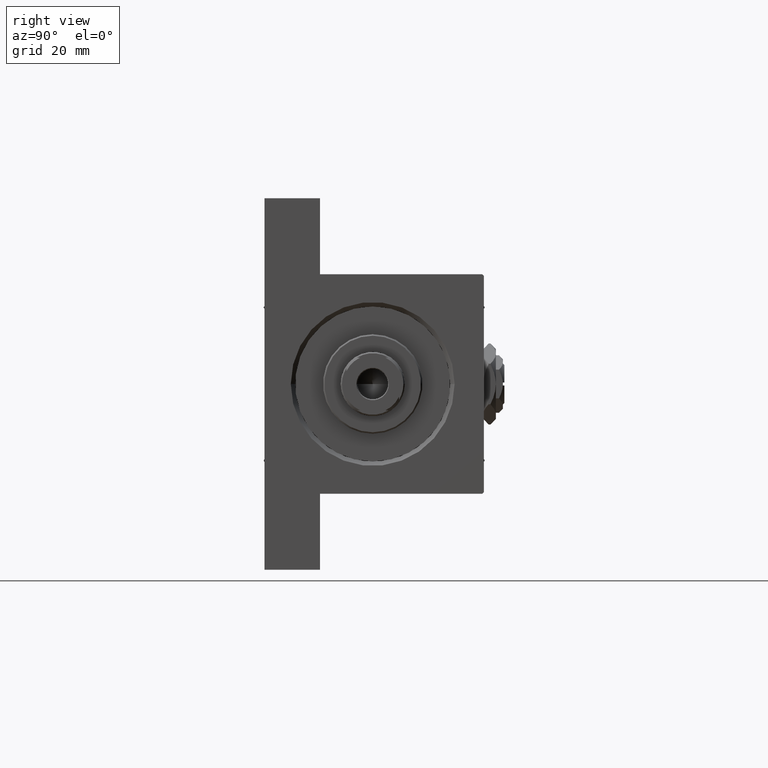
[diagram: clean part render]
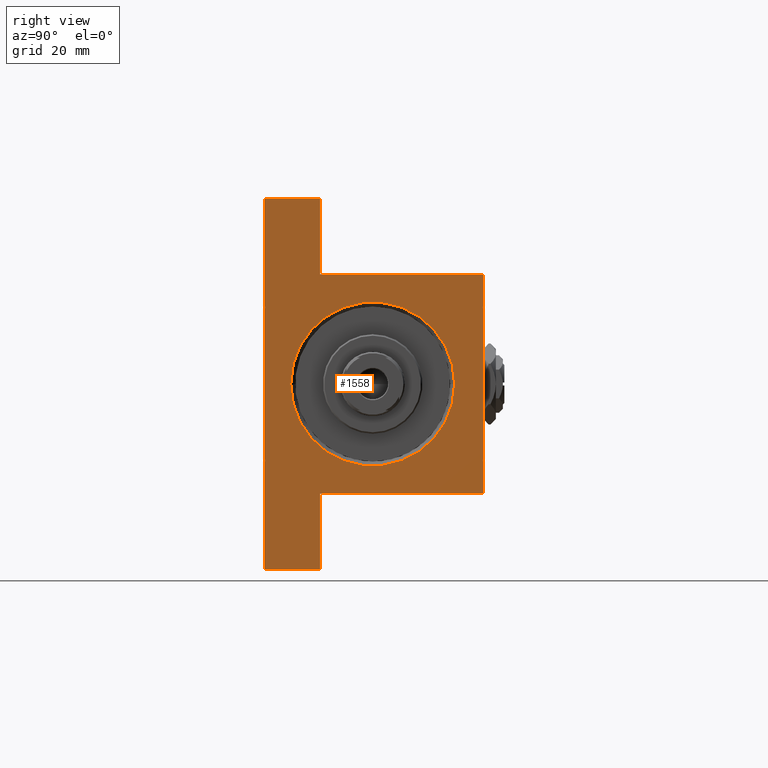
[diagram: same view with one face highlighted and labeled with its STEP entity id]
A machine part, right view. The second image highlights one B-rep face of the part: STEP entity #1558.
In plain terms, the highlighted planar face has unit normal (-1, 0, 0).
Its self-contained STEP definition (entity closure, byte-faithful):
#11 = CARTESIAN_POINT ( 'NONE',  ( 157.9999999999999716, 37.49999999999999289, -18.50000000000000000 ) ) ;
#141 = AXIS2_PLACEMENT_3D ( 'NONE', #45875, #11219, #41426 ) ;
#249 = VECTOR ( 'NONE', #32929, 1000.000000000000000 ) ;
#474 = DIRECTION ( 'NONE',  ( 0.000000000000000000, 0.000000000000000000, -1.000000000000000000 ) ) ;
#834 = DIRECTION ( 'NONE',  ( 0.000000000000000000, 0.000000000000000000, -1.000000000000000000 ) ) ;
#1558 = ADVANCED_FACE ( 'NONE', ( #3203, #48323 ), #36921, .F. ) ;
#1622 = VERTEX_POINT ( 'NONE', #22053 ) ;
#2130 = AXIS2_PLACEMENT_3D ( 'NONE', #11147, #45077, #7648 ) ;
#2266 = DIRECTION ( 'NONE',  ( 0.000000000000000000, -1.000000000000000000, -1.850371707708594316E-16 ) ) ;
#2557 = EDGE_CURVE ( 'NONE', #12005, #17351, #33893, .T. ) ;
#2971 = CARTESIAN_POINT ( 'NONE',  ( 158.0000000000000000, 37.00000000000000000, 37.49999999999999289 ) ) ;
#3203 = FACE_BOUND ( 'NONE', #22535, .T. ) ;
#4020 = VERTEX_POINT ( 'NONE', #20658 ) ;
#4739 = VECTOR ( 'NONE', #2266, 1000.000000000000000 ) ;
#6245 = DIRECTION ( 'NONE',  ( -1.067522139062650277E-15, -1.000000000000000000, 0.000000000000000000 ) ) ;
#6467 = AXIS2_PLACEMENT_3D ( 'NONE', #46582, #42863, #12404 ) ;
#7218 = LINE ( 'NONE', #40195, #14361 ) ;
#7609 = DIRECTION ( 'NONE',  ( -0.000000000000000000, -1.000000000000000000, -0.000000000000000000 ) ) ;
#7648 = DIRECTION ( 'NONE',  ( 0.000000000000000000, 0.000000000000000000, 1.000000000000000000 ) ) ;
#9257 = EDGE_CURVE ( 'NONE', #14672, #32594, #13913, .T. ) ;
#10284 = LINE ( 'NONE', #21190, #33402 ) ;
#10386 = LINE ( 'NONE', #40838, #249 ) ;
#10769 = CARTESIAN_POINT ( 'NONE',  ( 158.0000000000000000, -37.50000000000000000, 37.49999999999997868 ) ) ;
#11147 = CARTESIAN_POINT ( 'NONE',  ( 158.0000000000000000, 0.000000000000000000, 0.000000000000000000 ) ) ;
#11219 = DIRECTION ( 'NONE',  ( -1.000000000000000000, -0.000000000000000000, 0.000000000000000000 ) ) ;
#11254 = CARTESIAN_POINT ( 'NONE',  ( 158.0000000000000000, 37.50000000000000000, 36.99999999999999289 ) ) ;
#12005 = VERTEX_POINT ( 'NONE', #27209 ) ;
#12404 = DIRECTION ( 'NONE',  ( 0.000000000000000000, 0.000000000000000000, 1.000000000000000000 ) ) ;
#12675 = EDGE_CURVE ( 'NONE', #32594, #39873, #35982, .T. ) ;
#13627 = VECTOR ( 'NONE', #15464, 1000.000000000000000 ) ;
#13846 = ORIENTED_EDGE ( 'NONE', *, *, #42245, .T. ) ;
#13913 = LINE ( 'NONE', #2971, #46594 ) ;
#14361 = VECTOR ( 'NONE', #6245, 1000.000000000000000 ) ;
#14672 = VERTEX_POINT ( 'NONE', #11254 ) ;
#14952 = VECTOR ( 'NONE', #474, 1000.000000000000000 ) ;
#15122 = VERTEX_POINT ( 'NONE', #11 ) ;
#15464 = DIRECTION ( 'NONE',  ( 0.000000000000000000, -9.251858538542972814E-17, -1.000000000000000000 ) ) ;
#15689 = ORIENTED_EDGE ( 'NONE', *, *, #17674, .T. ) ;
#17351 = VERTEX_POINT ( 'NONE', #38820 ) ;
#17674 = EDGE_CURVE ( 'NONE', #17351, #46938, #19703, .T. ) ;
#18382 = ORIENTED_EDGE ( 'NONE', *, *, #38519, .F. ) ;
#18397 = CARTESIAN_POINT ( 'NONE',  ( 157.9999999999999716, -63.50000000000002842, -37.50000000000000000 ) ) ;
#19343 = CARTESIAN_POINT ( 'NONE',  ( 158.0000000000000000, 37.50000000000000000, 37.49999999999999289 ) ) ;
#19703 = LINE ( 'NONE', #34803, #30927 ) ;
#20658 = CARTESIAN_POINT ( 'NONE',  ( 158.0000000000000000, 3.429011037612585332E-15, 27.49999999999996803 ) ) ;
#21052 = EDGE_CURVE ( 'NONE', #37742, #4020, #38922, .T. ) ;
#21122 = CARTESIAN_POINT ( 'NONE',  ( 158.0000000000000000, 37.50000000000000000, 37.49999999999999289 ) ) ;
#21190 = CARTESIAN_POINT ( 'NONE',  ( 158.0000000000000000, -37.50000000000000000, 36.99999999999995026 ) ) ;
#21525 = ORIENTED_EDGE ( 'NONE', *, *, #37113, .T. ) ;
#22053 = CARTESIAN_POINT ( 'NONE',  ( 158.0000000000000000, 63.50000000000000000, -37.50000000000000000 ) ) ;
#22535 = EDGE_LOOP ( 'NONE', ( #37890, #24627 ) ) ;
#22764 = ORIENTED_EDGE ( 'NONE', *, *, #27455, .F. ) ;
#22789 = VERTEX_POINT ( 'NONE', #31694 ) ;
#22854 = VERTEX_POINT ( 'NONE', #40834 ) ;
#23779 = LINE ( 'NONE', #19343, #14952 ) ;
#24627 = ORIENTED_EDGE ( 'NONE', *, *, #42500, .T. ) ;
#25888 = LINE ( 'NONE', #10769, #13627 ) ;
#26101 = ORIENTED_EDGE ( 'NONE', *, *, #39370, .T. ) ;
#27209 = CARTESIAN_POINT ( 'NONE',  ( 158.0000000000000000, -37.50000000000000711, -18.50000000000000355 ) ) ;
#27455 = EDGE_CURVE ( 'NONE', #14672, #15122, #23779, .T. ) ;
#27513 = ORIENTED_EDGE ( 'NONE', *, *, #47444, .F. ) ;
#28295 = VECTOR ( 'NONE', #7609, 1000.000000000000000 ) ;
#30927 = VECTOR ( 'NONE', #834, 1000.000000000000000 ) ;
#31005 = CIRCLE ( 'NONE', #6467, 27.99999999999996803 ) ;
#31694 = CARTESIAN_POINT ( 'NONE',  ( 158.0000000000000000, -37.50000000000000000, 36.99999999999995026 ) ) ;
#32472 = DIRECTION ( 'NONE',  ( 0.000000000000000000, -0.7071067811865474617, 0.7071067811865474617 ) ) ;
#32594 = VERTEX_POINT ( 'NONE', #44422 ) ;
#32929 = DIRECTION ( 'NONE',  ( 0.000000000000000000, -1.000000000000000000, 0.000000000000000000 ) ) ;
#33402 = VECTOR ( 'NONE', #37276, 1000.000000000000114 ) ;
#33646 = DIRECTION ( 'NONE',  ( 0.000000000000000000, 0.000000000000000000, -1.000000000000000000 ) ) ;
#33893 = LINE ( 'NONE', #49005, #28295 ) ;
#34144 = VECTOR ( 'NONE', #33646, 1000.000000000000000 ) ;
#34803 = CARTESIAN_POINT ( 'NONE',  ( 157.9999999999999716, -63.50000000000002842, -18.50000000000000000 ) ) ;
#35435 = ORIENTED_EDGE ( 'NONE', *, *, #9257, .T. ) ;
#35982 = LINE ( 'NONE', #21122, #4739 ) ;
#36629 = CARTESIAN_POINT ( 'NONE',  ( 158.0000000000000000, 63.50000000000000000, -18.50000000000000000 ) ) ;
#36921 = PLANE ( 'NONE',  #2130 ) ;
#37113 = EDGE_CURVE ( 'NONE', #22854, #15122, #7218, .T. ) ;
#37276 = DIRECTION ( 'NONE',  ( -0.000000000000000000, -0.7071067811865474617, -0.7071067811865474617 ) ) ;
#37742 = VERTEX_POINT ( 'NONE', #41712 ) ;
#37890 = ORIENTED_EDGE ( 'NONE', *, *, #21052, .T. ) ;
#38519 = EDGE_CURVE ( 'NONE', #22854, #1622, #44543, .T. ) ;
#38820 = CARTESIAN_POINT ( 'NONE',  ( 157.9999999999999716, -63.50000000000002842, -18.50000000000000000 ) ) ;
#38922 = CIRCLE ( 'NONE', #141, 27.99999999999996803 ) ;
#39370 = EDGE_CURVE ( 'NONE', #39873, #22789, #10284, .T. ) ;
#39873 = VERTEX_POINT ( 'NONE', #42374 ) ;
#40195 = CARTESIAN_POINT ( 'NONE',  ( 158.0000000000000000, 63.50000000000000000, -18.50000000000000000 ) ) ;
#40834 = CARTESIAN_POINT ( 'NONE',  ( 158.0000000000000000, 63.50000000000000000, -18.50000000000000000 ) ) ;
#40838 = CARTESIAN_POINT ( 'NONE',  ( 158.0000000000000000, 37.50000000000000000, -37.50000000000000000 ) ) ;
#41404 = EDGE_LOOP ( 'NONE', ( #22764, #35435, #42162, #26101, #13846, #47146, #15689, #27513, #18382, #21525 ) ) ;
#41426 = DIRECTION ( 'NONE',  ( 0.000000000000000000, 0.000000000000000000, 1.000000000000000000 ) ) ;
#41712 = CARTESIAN_POINT ( 'NONE',  ( 158.0000000000000000, 0.000000000000000000, -28.49999999999997158 ) ) ;
#42162 = ORIENTED_EDGE ( 'NONE', *, *, #12675, .T. ) ;
#42245 = EDGE_CURVE ( 'NONE', #22789, #12005, #25888, .T. ) ;
#42374 = CARTESIAN_POINT ( 'NONE',  ( 158.0000000000000000, -36.99999999999997158, 37.49999999999997868 ) ) ;
#42500 = EDGE_CURVE ( 'NONE', #4020, #37742, #31005, .T. ) ;
#42863 = DIRECTION ( 'NONE',  ( -1.000000000000000000, -0.000000000000000000, 0.000000000000000000 ) ) ;
#44422 = CARTESIAN_POINT ( 'NONE',  ( 158.0000000000000000, 37.00000000000000000, 37.49999999999999289 ) ) ;
#44543 = LINE ( 'NONE', #36629, #34144 ) ;
#45077 = DIRECTION ( 'NONE',  ( -1.000000000000000000, -0.000000000000000000, 0.000000000000000000 ) ) ;
#45875 = CARTESIAN_POINT ( 'NONE',  ( 158.0000000000000000, 0.000000000000000000, -0.5000000000000004441 ) ) ;
#46582 = CARTESIAN_POINT ( 'NONE',  ( 158.0000000000000000, 0.000000000000000000, -0.5000000000000004441 ) ) ;
#46594 = VECTOR ( 'NONE', #32472, 1000.000000000000114 ) ;
#46938 = VERTEX_POINT ( 'NONE', #18397 ) ;
#47146 = ORIENTED_EDGE ( 'NONE', *, *, #2557, .T. ) ;
#47444 = EDGE_CURVE ( 'NONE', #1622, #46938, #10386, .T. ) ;
#48323 = FACE_OUTER_BOUND ( 'NONE', #41404, .T. ) ;
#49005 = CARTESIAN_POINT ( 'NONE',  ( 157.9999999999999716, -63.50000000000002842, -18.50000000000000000 ) ) ;